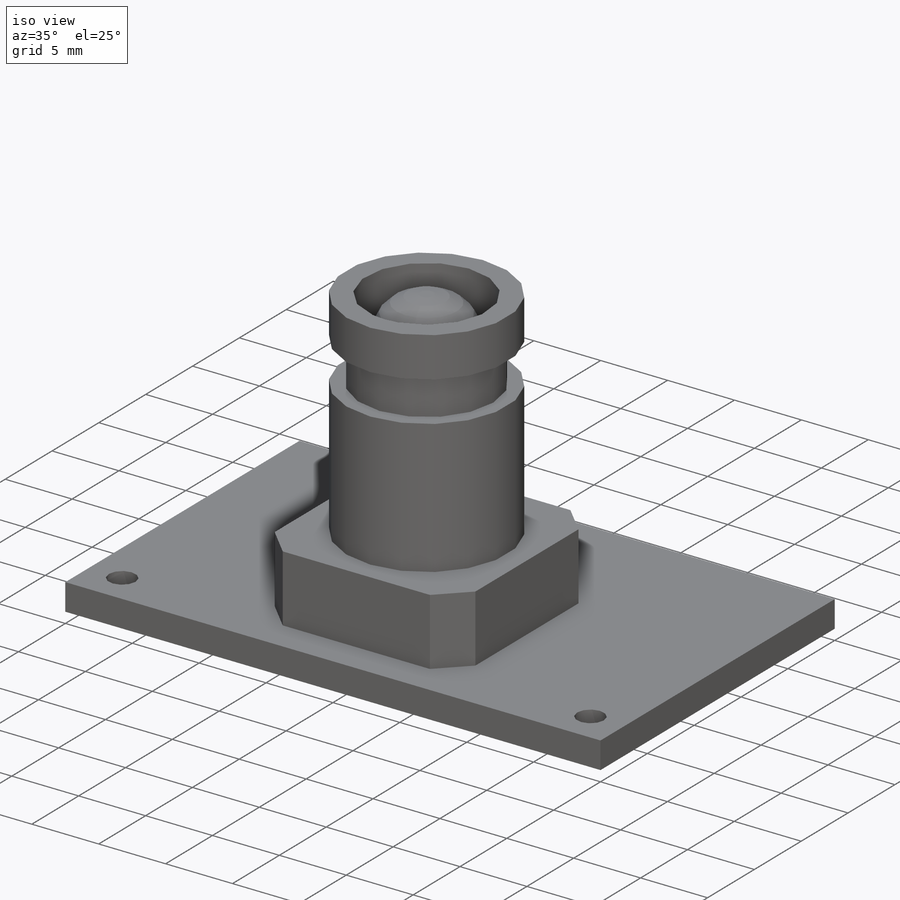
[diagram: iso view]
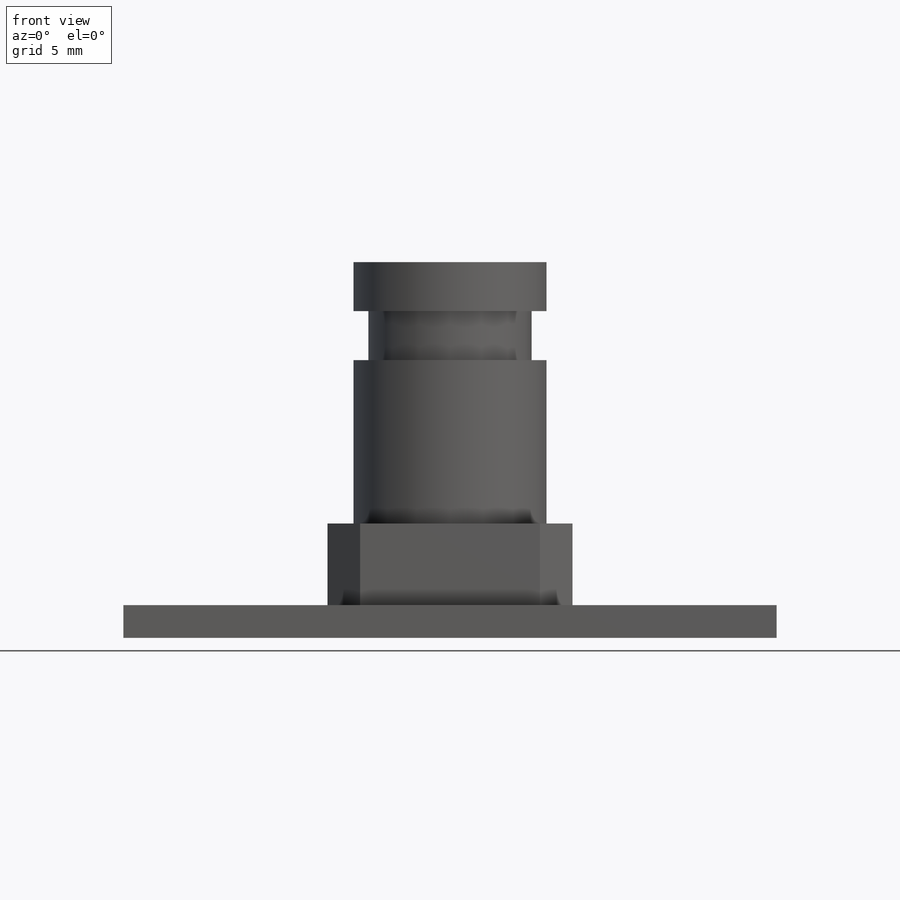
[diagram: front view]
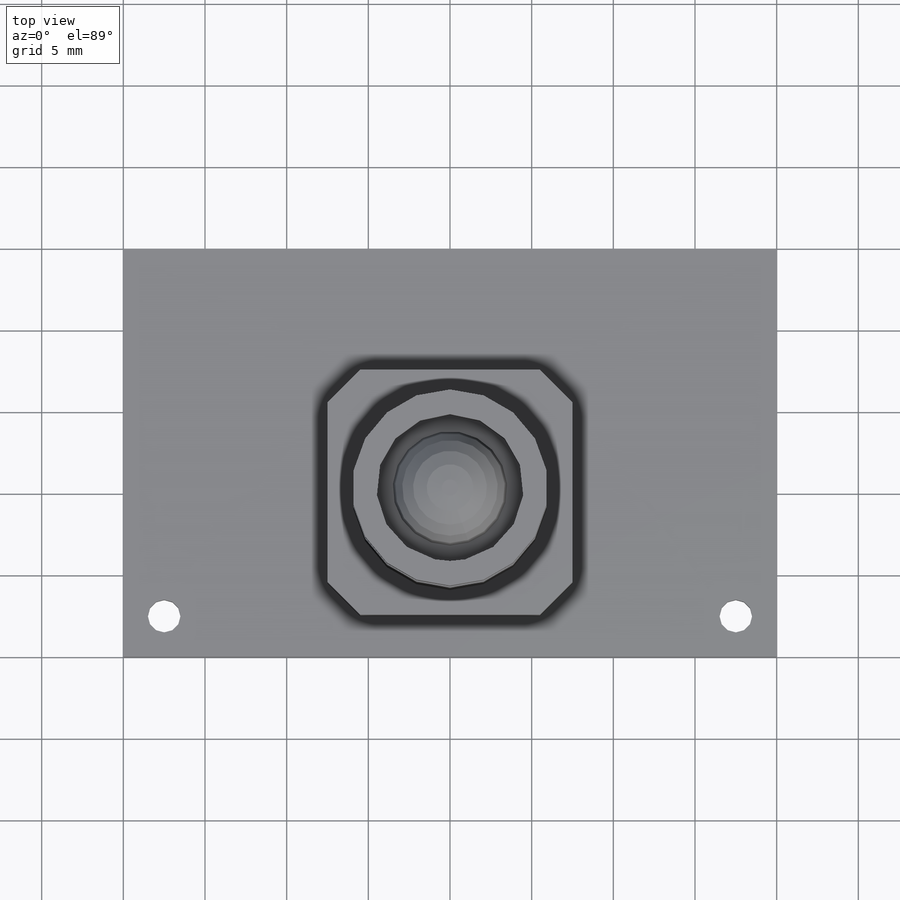
[diagram: top view]
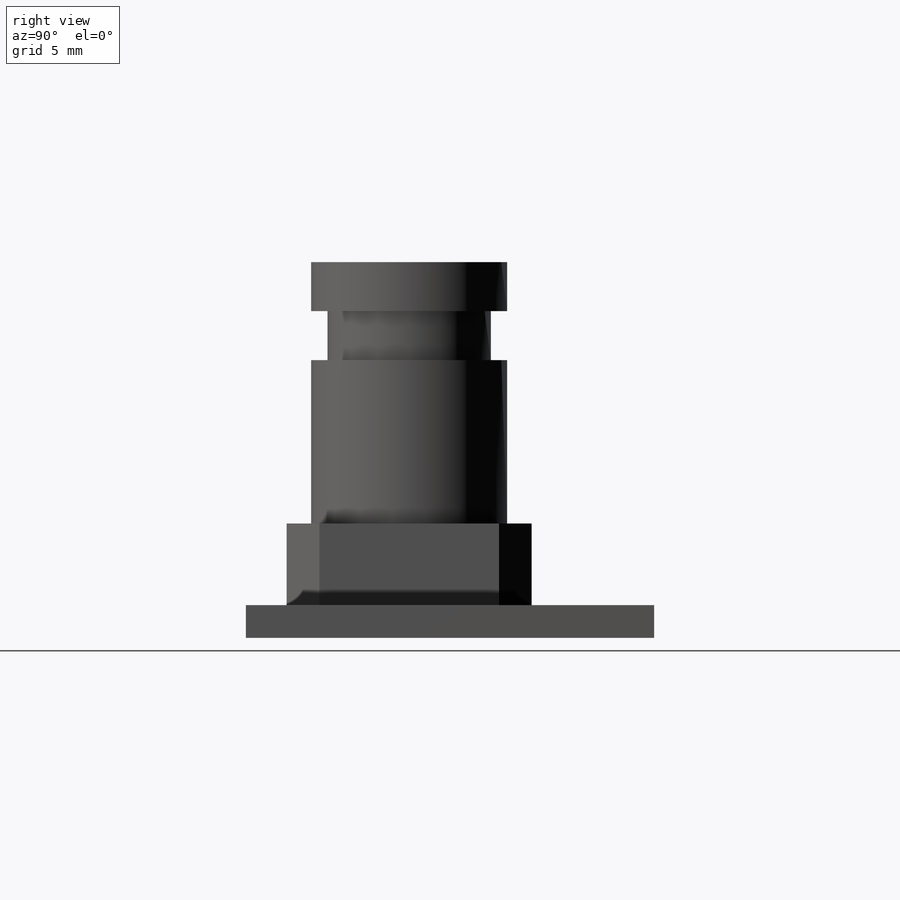
[diagram: right view]
SOLIDWORKS PART (.sldprt)
format: sldprt  version: not decoded by parser v0  size: 191,488 bytes
history: native  units: mm
features: sketch x6, extrude x6, plane x3, material x1, fillet x1 (+9 scaffold rows collapsed)
feature tree (26):
  scaffold x9  (default folders/planes/origin — collapsed)
  material  "Material <not specified>"
  plane  "Face"
  plane  "Dessus"
  plane  "Droite"
  sketch  "Esquisse1"  dims[D3=2.0mm D1=40.0mm D2=25.0mm D4=2.5mm D5=2.5mm]
  extrude  "Extrusion1"  Depth=2mm
  sketch  "Esquisse2"  dims[c1.D1=~5.552777mm c2.D1=45.0deg c2.D2=7.0mm c2.D3=5.0mm c2.D4=7.0mm c3.D1=~2.843948mm c4.D1=45.0deg c4.D2=7.0mm c4.D3=7.0mm c5.D1=15.0mm c5.D2=15.0mm c5.D3=~1.694147mm c6.D3=45.0deg c6.D4=11.0mm c6.D5=10.0mm]
  extrude  "Extrusion2"  Depth=5mm
  sketch  "Esquisse3"  dims[D1=12.0mm]
  extrude  "Extrusion3"  Depth=10mm
  sketch  "Esquisse4"  dims[D1=10.0mm]
  extrude  "Extrusion4"  Depth=3mm
  sketch  "Esquisse5"  dims[D1=9.0mm D2=6.0mm]
  extrude  "Extrusion5"  Depth=3mm
  sketch  "Esquisse6"  dims[D1=7.0mm]
  extrude  "Extrusion6"  Depth=3mm
  fillet  "Congé1"  Radius=3mm
decode coverage: 13 of 13 modeling features carry decoded parameters
note: ~ marks probable driven/reference dimensions
note: suppression state not decoded; provenance and decode notes live in map.json
